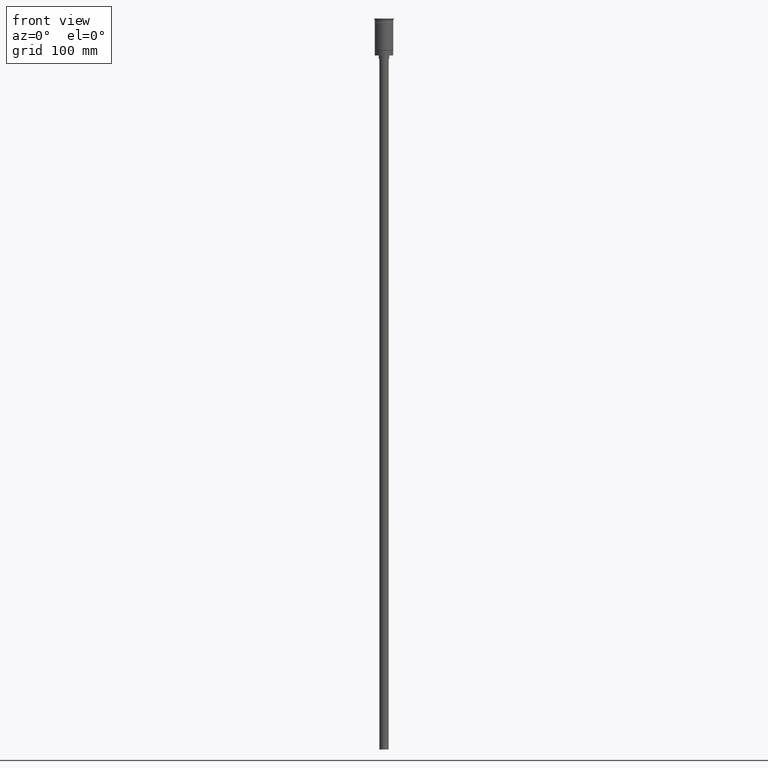
[diagram: clean part render]
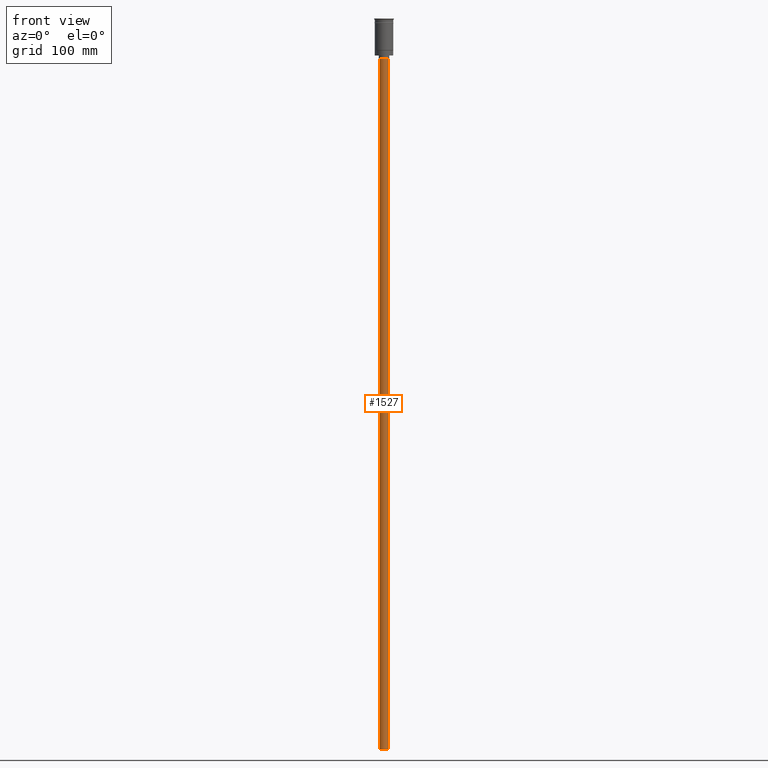
[diagram: same view with one face highlighted and labeled with its STEP entity id]
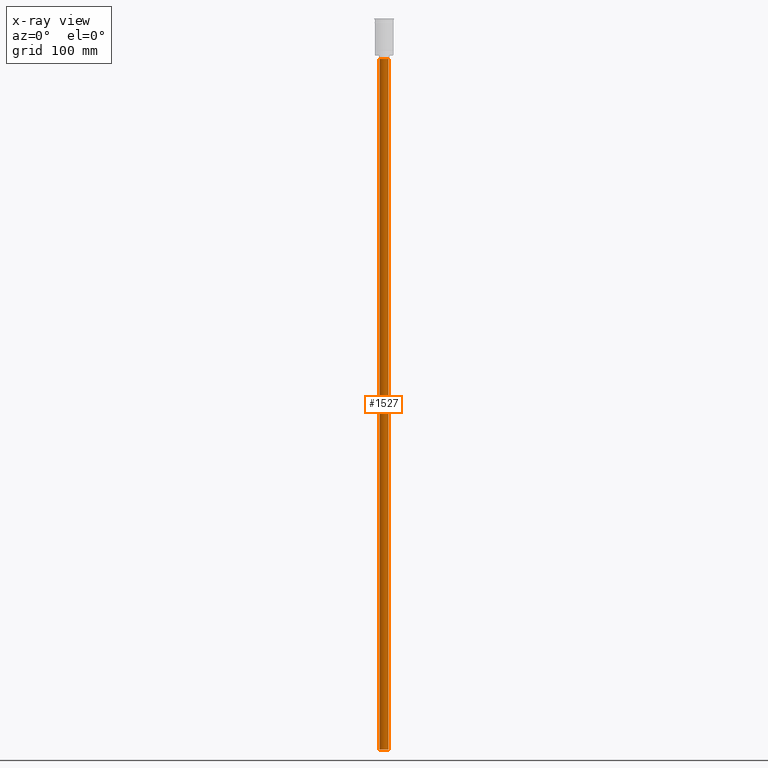
[diagram: x-ray of the same camera — body ghosted, the highlighted face saturated]
A machine part, front view. The second image highlights one B-rep face of the part: STEP entity #1527.
The next image is the same camera in x-ray: the body ghosted, the highlighted face saturated — about 0% of this face is hidden behind the body in this view.
In plain terms, the highlighted cylindrical surface (edge-blend (fillet) strip) has radius 4 mm, axis along (-0, -0, 1).
Its self-contained STEP definition (entity closure, byte-faithful):
#27 = CARTESIAN_POINT ( 'NONE',  ( 4.000000000000000000, 0.000000000000000000, -35.00000000000000000 ) ) ;
#45 = DIRECTION ( 'NONE',  ( 0.000000000000000000, 0.000000000000000000, -1.000000000000000000 ) ) ;
#177 = DIRECTION ( 'NONE',  ( -0.000000000000000000, -0.000000000000000000, 1.000000000000000000 ) ) ;
#301 = CARTESIAN_POINT ( 'NONE',  ( 0.000000000000000000, 0.000000000000000000, -632.0000000000000000 ) ) ;
#325 = CARTESIAN_POINT ( 'NONE',  ( 4.000000000000000000, 0.000000000000000000, -632.0000000000000000 ) ) ;
#355 = CARTESIAN_POINT ( 'NONE',  ( -4.000000000000000000, 4.898587196589412829E-16, -632.0000000000000000 ) ) ;
#423 = AXIS2_PLACEMENT_3D ( 'NONE', #1167, #1272, #971 ) ;
#424 = AXIS2_PLACEMENT_3D ( 'NONE', #439, #693, #1056 ) ;
#431 = DIRECTION ( 'NONE',  ( -1.000000000000000000, 0.000000000000000000, 0.000000000000000000 ) ) ;
#439 = CARTESIAN_POINT ( 'NONE',  ( 0.000000000000000000, 0.000000000000000000, -35.00000000000000000 ) ) ;
#447 = VECTOR ( 'NONE', #824, 1000.000000000000000 ) ;
#510 = VERTEX_POINT ( 'NONE', #27 ) ;
#553 = AXIS2_PLACEMENT_3D ( 'NONE', #301, #45, #431 ) ;
#610 = EDGE_CURVE ( 'NONE', #510, #698, #1109, .T. ) ;
#662 = EDGE_CURVE ( 'NONE', #1113, #1126, #1035, .T. ) ;
#693 = DIRECTION ( 'NONE',  ( 0.000000000000000000, 0.000000000000000000, -1.000000000000000000 ) ) ;
#698 = VERTEX_POINT ( 'NONE', #928 ) ;
#788 = CARTESIAN_POINT ( 'NONE',  ( -4.000000000000000000, 4.898587196589412829E-16, -632.0000000000000000 ) ) ;
#824 = DIRECTION ( 'NONE',  ( -0.000000000000000000, -0.000000000000000000, 1.000000000000000000 ) ) ;
#847 = ORIENTED_EDGE ( 'NONE', *, *, #1201, .F. ) ;
#850 = ORIENTED_EDGE ( 'NONE', *, *, #610, .T. ) ;
#928 = CARTESIAN_POINT ( 'NONE',  ( -4.000000000000000000, 4.898587196589412829E-16, -35.00000000000000000 ) ) ;
#932 = CARTESIAN_POINT ( 'NONE',  ( 4.000000000000000000, 0.000000000000000000, -632.0000000000000000 ) ) ;
#971 = DIRECTION ( 'NONE',  ( 1.000000000000000000, 0.000000000000000000, 0.000000000000000000 ) ) ;
#974 = ORIENTED_EDGE ( 'NONE', *, *, #1086, .T. ) ;
#1035 = CIRCLE ( 'NONE', #553, 4.000000000000000000 ) ;
#1056 = DIRECTION ( 'NONE',  ( -1.000000000000000000, 0.000000000000000000, 0.000000000000000000 ) ) ;
#1079 = VECTOR ( 'NONE', #177, 1000.000000000000000 ) ;
#1086 = EDGE_CURVE ( 'NONE', #1113, #510, #1280, .T. ) ;
#1109 = CIRCLE ( 'NONE', #424, 4.000000000000000000 ) ;
#1113 = VERTEX_POINT ( 'NONE', #932 ) ;
#1126 = VERTEX_POINT ( 'NONE', #788 ) ;
#1141 = ORIENTED_EDGE ( 'NONE', *, *, #662, .F. ) ;
#1144 = FACE_OUTER_BOUND ( 'NONE', #1282, .T. ) ;
#1150 = CYLINDRICAL_SURFACE ( 'NONE', #423, 4.000000000000000000 ) ;
#1167 = CARTESIAN_POINT ( 'NONE',  ( 0.000000000000000000, 0.000000000000000000, -632.0000000000000000 ) ) ;
#1201 = EDGE_CURVE ( 'NONE', #1126, #698, #1458, .T. ) ;
#1272 = DIRECTION ( 'NONE',  ( -0.000000000000000000, -0.000000000000000000, 1.000000000000000000 ) ) ;
#1280 = LINE ( 'NONE', #325, #1079 ) ;
#1282 = EDGE_LOOP ( 'NONE', ( #847, #1141, #974, #850 ) ) ;
#1458 = LINE ( 'NONE', #355, #447 ) ;
#1527 = ADVANCED_FACE ( 'NONE', ( #1144 ), #1150, .T. ) ;